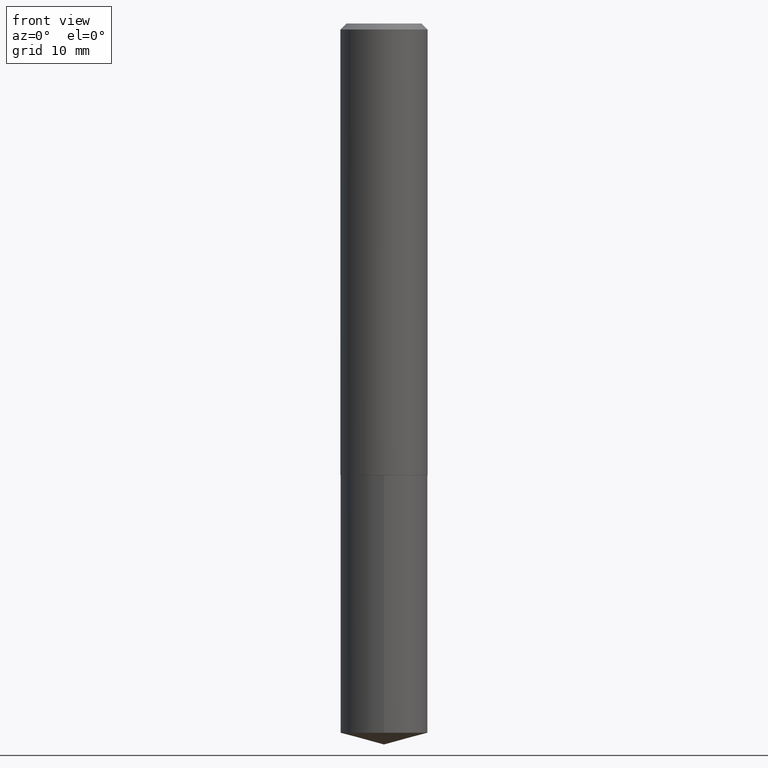
[diagram: clean part render]
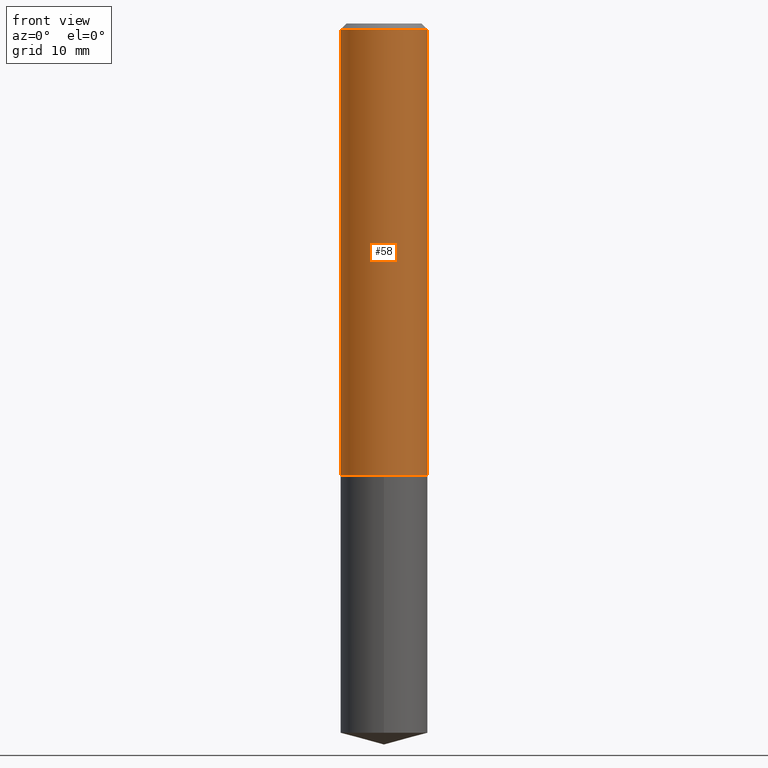
[diagram: same view with one face highlighted and labeled with its STEP entity id]
A machine part, front view. The second image highlights one B-rep face of the part: STEP entity #58.
In plain terms, the highlighted cylindrical surface (partial cylindrical patch) has radius 5.7506 mm, axis along (-0, 0, 1).
Its self-contained STEP definition (entity closure, byte-faithful):
#4 = VERTEX_POINT ( 'NONE', #174 ) ;
#6 = CARTESIAN_POINT ( 'NONE',  ( -0.2264000000000002399, -6.568729689943663305E-15, -2.342100000000000293 ) ) ;
#12 = DIRECTION ( 'NONE',  ( -2.445468806185136877E-29, 3.491481338843145188E-15, 1.000000000000000000 ) ) ;
#22 = FACE_OUTER_BOUND ( 'NONE', #379, .T. ) ;
#43 = DIRECTION ( 'NONE',  ( -2.445468806185136877E-29, 3.491481338843145188E-15, 1.000000000000000000 ) ) ;
#58 = ADVANCED_FACE ( 'NONE', ( #22 ), #359, .T. ) ;
#62 = CARTESIAN_POINT ( 'NONE',  ( 5.727532490966208999E-29, -8.177398443704531239E-15, -2.342100000000000293 ) ) ;
#70 = CARTESIAN_POINT ( 'NONE',  ( 0.2264000000000001012, -1.580942750228171416E-15, 1.103966422040200291E-29 ) ) ;
#81 = VERTEX_POINT ( 'NONE', #325 ) ;
#84 = DIRECTION ( 'NONE',  ( 1.000000000000000000, -6.982962677686265922E-15, 0.000000000000000000 ) ) ;
#95 = CARTESIAN_POINT ( 'NONE',  ( 0.000000000000000000, 0.000000000000000000, 0.000000000000000000 ) ) ;
#97 = CIRCLE ( 'NONE', #260, 0.2263999999999999624 ) ;
#105 = EDGE_CURVE ( 'NONE', #81, #137, #349, .T. ) ;
#129 = DIRECTION ( 'NONE',  ( -2.445468806185136597E-29, 3.491481338843145583E-15, 1.000000000000000000 ) ) ;
#137 = VERTEX_POINT ( 'NONE', #227 ) ;
#139 = AXIS2_PLACEMENT_3D ( 'NONE', #95, #129, #251 ) ;
#142 = CARTESIAN_POINT ( 'NONE',  ( 7.642090019328599159E-31, -1.091087918388489774E-16, -0.03125000000000019429 ) ) ;
#174 = CARTESIAN_POINT ( 'NONE',  ( -0.2263999999999999624, -2.534584864010821841E-15, -0.03125000000000019429 ) ) ;
#176 = DIRECTION ( 'NONE',  ( -2.445468806185136597E-29, 3.491481338843145583E-15, 1.000000000000000000 ) ) ;
#195 = VERTEX_POINT ( 'NONE', #6 ) ;
#200 = ORIENTED_EDGE ( 'NONE', *, *, #272, .F. ) ;
#203 = AXIS2_PLACEMENT_3D ( 'NONE', #62, #176, #276 ) ;
#210 = CARTESIAN_POINT ( 'NONE',  ( -0.2264000000000001012, 1.608668753760867540E-15, -1.113646904433711261E-29 ) ) ;
#218 = EDGE_CURVE ( 'NONE', #195, #4, #248, .T. ) ;
#227 = CARTESIAN_POINT ( 'NONE',  ( 0.2263999999999999624, -1.690051542067019531E-15, -0.03125000000000019429 ) ) ;
#237 = ORIENTED_EDGE ( 'NONE', *, *, #105, .T. ) ;
#248 = LINE ( 'NONE', #210, #292 ) ;
#251 = DIRECTION ( 'NONE',  ( 1.000000000000000000, -6.982962677686266711E-15, 4.876176775795935232E-29 ) ) ;
#260 = AXIS2_PLACEMENT_3D ( 'NONE', #142, #362, #84 ) ;
#272 = EDGE_CURVE ( 'NONE', #4, #137, #97, .T. ) ;
#276 = DIRECTION ( 'NONE',  ( 1.000000000000000000, -6.982962677686269077E-15, 0.000000000000000000 ) ) ;
#281 = EDGE_CURVE ( 'NONE', #195, #81, #374, .T. ) ;
#292 = VECTOR ( 'NONE', #12, 39.37007874015748143 ) ;
#312 = VECTOR ( 'NONE', #43, 39.37007874015748143 ) ;
#317 = ORIENTED_EDGE ( 'NONE', *, *, #218, .F. ) ;
#325 = CARTESIAN_POINT ( 'NONE',  ( 0.2264000000000002399, -9.758341193932704824E-15, -2.342100000000000293 ) ) ;
#347 = ORIENTED_EDGE ( 'NONE', *, *, #281, .T. ) ;
#349 = LINE ( 'NONE', #70, #312 ) ;
#359 = CYLINDRICAL_SURFACE ( 'NONE', #139, 0.2264000000000001012 ) ;
#362 = DIRECTION ( 'NONE',  ( -2.445468806185136597E-29, 3.491481338843145583E-15, 1.000000000000000000 ) ) ;
#374 = CIRCLE ( 'NONE', #203, 0.2264000000000002399 ) ;
#379 = EDGE_LOOP ( 'NONE', ( #317, #347, #237, #200 ) ) ;